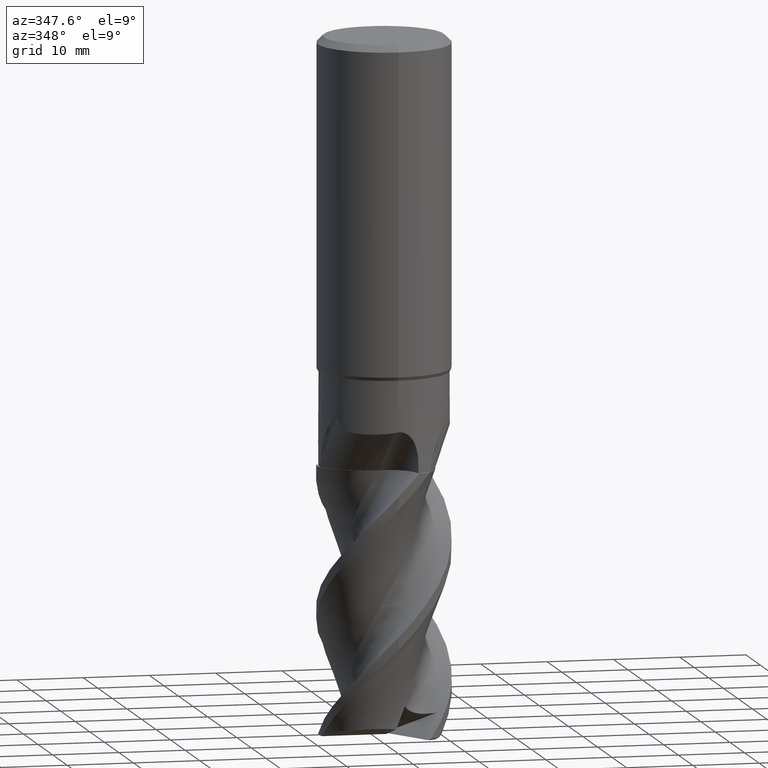
[diagram: clean part render]
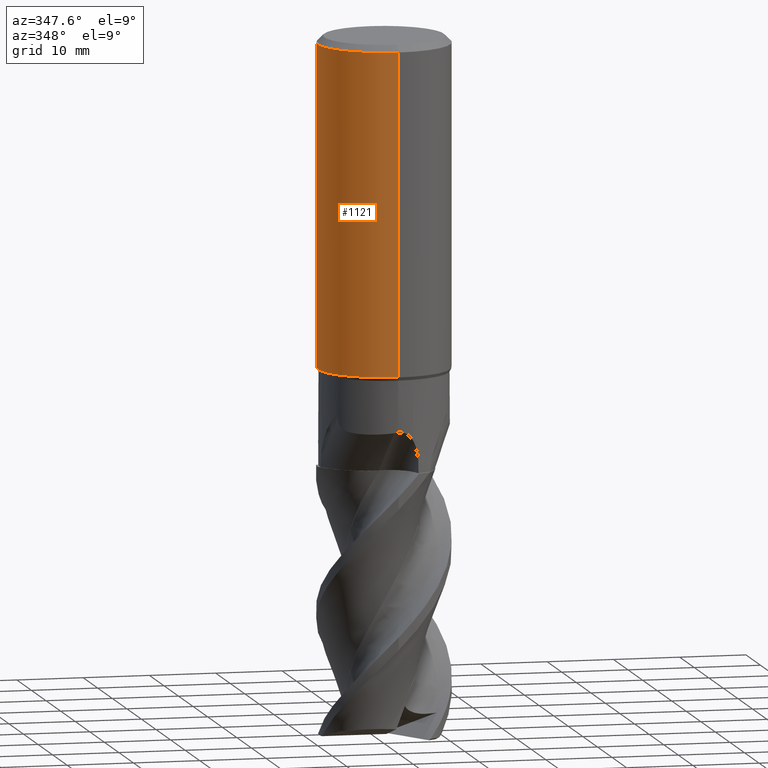
[diagram: same view with one face highlighted and labeled with its STEP entity id]
A machine part, auxiliary view. The second image highlights one B-rep face of the part: STEP entity #1121.
In plain terms, the highlighted cylindrical surface (partial cylindrical patch) has radius 10 mm, axis along (-0, -0, 1).
Its self-contained STEP definition (entity closure, byte-faithful):
#505=VERTEX_POINT('',#1365);
#587=EDGE_CURVE('',#627,#831,#1455,.T.);
#607=VERTEX_POINT('',#1477);
#627=VERTEX_POINT('',#1502);
#659=EDGE_CURVE('',#831,#505,#1537,.T.);
#767=EDGE_CURVE('',#827,#889,#1652,.T.);
#771=EDGE_CURVE('',#1181,#835,#1656,.T.);
#807=EDGE_CURVE('',#505,#627,#1698,.T.);
#827=VERTEX_POINT('',#1723);
#831=VERTEX_POINT('',#1727);
#835=VERTEX_POINT('',#1733);
#889=VERTEX_POINT('',#1791);
#983=EDGE_CURVE('',#1059,#1123,#1890,.T.);
#1011=VERTEX_POINT('',#1918);
#1059=VERTEX_POINT('',#1971);
#1121=ADVANCED_FACE('',(#2040,#2041,#2042),#2043,.T.);
#1123=VERTEX_POINT('',#2045);
#1143=EDGE_CURVE('',#1227,#1181,#2066,.T.);
#1159=EDGE_CURVE('',#1011,#607,#2082,.T.);
#1175=EDGE_CURVE('',#835,#1059,#2099,.T.);
#1181=VERTEX_POINT('',#2105);
#1223=EDGE_CURVE('',#607,#827,#2151,.T.);
#1227=VERTEX_POINT('',#2155);
#1251=EDGE_CURVE('',#1123,#1227,#2181,.T.);
#1273=EDGE_CURVE('',#1011,#889,#2204,.T.);
#1365=CARTESIAN_POINT('',(-0.0316227370732325,9.99995,-33.3020962430548));
#1455=B_SPLINE_CURVE_WITH_KNOTS('',3,(#3294,#3295,#3296,#3297,#3298,#3299,#3300,#3301,#3302,#3303,#3304,#3305,#3306,#3307,#3308,#3309),.UNSPECIFIED.,.F.,.F.,(4,2,2,2,2,2,2,4),(13.0822518574034,13.7710650298006,14.4599721384425,15.1488792470844,15.8377863557263,16.5266934643682,17.2143253597037,17.9019572550391),.UNSPECIFIED.);
#1477=CARTESIAN_POINT('',(1.22460635382238E-015,-10.0,-1.0));
#1502=CARTESIAN_POINT('',(-2.97121348113491,9.54839727124517,-34.7513633984255));
#1537=LINE('',#4011,#4012);
#1652=LINE('',#4627,#4628);
#1656=B_SPLINE_CURVE_WITH_KNOTS('',3,(#4635,#4636,#4637,#4638,#4639,#4640,#4641,#4642,#4643,#4644,#4645,#4646,#4647,#4648,#4649,#4650,#4651,#4652,#4653,#4654,#4655,#4656,#4657,#4658,#4659,#4660,#4661,#4662,#4663,#4664,#4665,#4666,#4667,#4668,#4669,#4670,#4671,#4672,#4673,#4674,#4675,#4676,#4677,#4678,#4679,#4680,#4681),.UNSPECIFIED.,.F.,.F.,(4,2,2,3,2,2,2,2,2,2,2,2,2,2,2,2,2,2,2,2,2,2,4),(-0.904505291133134,-0.603003527422089,-0.301501763711045,0.0,0.301501763711044,0.603003527422088,0.904505291133132,1.20600705484418,1.50828914510139,1.81057123535861,2.11285332561582,2.41513541587304,2.7161033583785,3.01707130088397,3.31803924338943,3.6190071858949,3.92036276204674,4.22171833819858,4.52307391435042,4.82442949050226,5.1257850666541,5.42714064280595,5.72849621895779),.UNSPECIFIED.);
#1698=ELLIPSE('',#5702,11.1492843204286,10.0);
#1723=CARTESIAN_POINT('',(0.0,10.0,-1.0));
#1727=CARTESIAN_POINT('',(-0.0316227370731222,9.99995,-36.2160908087156));
#1733=CARTESIAN_POINT('',(-1.24962484061532,9.92161467492651,-30.1848124731723));
#1791=CARTESIAN_POINT('',(0.0,10.0,-49.48));
#1890=B_SPLINE_CURVE_WITH_KNOTS('',3,(#7703,#7704,#7705,#7706,#7707,#7708,#7709,#7710,#7711,#7712,#7713,#7714,#7715,#7716,#7717,#7718,#7719,#7720,#7721,#7722,#7723,#7724,#7725,#7726),.UNSPECIFIED.,.F.,.F.,(4,2,2,2,2,2,2,2,2,2,2,4),(7.46791014288792,7.96541256832062,8.46291499375333,8.96041741918603,9.45791984461874,9.95542227005144,10.4516566009806,10.9478909319097,11.4441252628388,11.940359593768,12.4400189088528,12.9396782239377),.UNSPECIFIED.);
#1918=CARTESIAN_POINT('',(1.22460635382238E-015,-10.0,-49.48));
#1971=CARTESIAN_POINT('',(-2.30015161783164,9.73187045407955,-30.1848124731723));
#2040=FACE_OUTER_BOUND('',#8729,.T.);
#2041=FACE_BOUND('',#8730,.T.);
#2042=FACE_BOUND('',#8731,.T.);
#2043=CYLINDRICAL_SURFACE('',#8732,10.0);
#2045=CARTESIAN_POINT('',(-0.0316227370732062,9.99995,-32.8094136196901));
#2066=B_SPLINE_CURVE_WITH_KNOTS('',3,(#9093,#9094,#9095,#9096,#9097,#9098,#9099,#9100,#9101,#9102,#9103,#9104,#9105,#9106,#9107,#9108,#9109,#9110,#9111,#9112,#9113,#9114,#9115,#9116,#9117,#9118,#9119,#9120,#9121,#9122,#9123,#9124,#9125,#9126,#9127,#9128,#9129,#9130,#9131,#9132,#9133,#9134,#9135,#9136,#9137,#9138,#9139),.UNSPECIFIED.,.F.,.F.,(4,2,2,3,2,2,2,2,2,2,2,2,2,2,2,2,2,2,2,2,2,2,4),(-0.904505291133134,-0.603003527422089,-0.301501763711045,0.0,0.301501763711044,0.603003527422088,0.904505291133132,1.20600705484418,1.50828914510139,1.81057123535861,2.11285332561582,2.41513541587304,2.7161033583785,3.01707130088397,3.31803924338943,3.6190071858949,3.92036276204674,4.22171833819858,4.52307391435042,4.82442949050226,5.1257850666541,5.42714064280595,5.72849621895779),.UNSPECIFIED.);
#2082=LINE('',#9213,#9214);
#2099=CIRCLE('',#9247,10.0);
#2105=CARTESIAN_POINT('',(-1.08083669387807,9.94141800957825,-30.909612292356));
#2151=CIRCLE('',#9843,10.0);
#2155=CARTESIAN_POINT('',(-0.0316227370735734,9.99995,-31.7466263731563));
#2181=LINE('',#9949,#9950);
#2204=CIRCLE('',#10030,10.0);
#3294=CARTESIAN_POINT('',(-3.064465144062,9.51887878801012,-34.619424718489));
#3295=CARTESIAN_POINT('',(-2.93207371977169,9.56150028927415,-34.8159031682856));
#3296=CARTESIAN_POINT('',(-2.78221330578179,9.60659017651691,-34.9961024951607));
#3297=CARTESIAN_POINT('',(-2.46338958635805,9.6932453227427,-35.3150755115873));
#3298=CARTESIAN_POINT('',(-2.2831818263397,9.73793998544854,-35.4650893942677));
#3299=CARTESIAN_POINT('',(-1.89006279967406,9.82181536300732,-35.7302027828549));
#3300=CARTESIAN_POINT('',(-1.67714982712961,9.86092398085721,-35.8453225636327));
#3301=CARTESIAN_POINT('',(-1.23181074870496,9.92639388610597,-36.0307928721989));
#3302=CARTESIAN_POINT('',(-0.998993982717713,9.95276140285555,-36.1012897100344));
#3303=CARTESIAN_POINT('',(-0.529421014680235,9.98875176931193,-36.1940203935694));
#3304=CARTESIAN_POINT('',(-0.292657869671584,9.99835406091206,-36.2162270569585));
#3305=CARTESIAN_POINT('',(0.166179351363574,10.0012460192168,-36.2162270569585));
#3306=CARTESIAN_POINT('',(0.402624036141334,9.99465558216676,-36.1941010422937));
#3307=CARTESIAN_POINT('',(0.871759467236618,9.96470178941006,-36.1015888545499));
#3308=CARTESIAN_POINT('',(1.10445661059111,9.94135916450407,-36.0312284120675));
#3309=CARTESIAN_POINT('',(1.32707291318415,9.91155272815985,-35.9386212624839));
#4011=CARTESIAN_POINT('',(-0.0316227370732325,9.99995,-32.8481638361144));
#4012=VECTOR('',#10349,1.0);
#4627=CARTESIAN_POINT('',(-1.22460635382238E-015,10.0,-25.24));
#4628=VECTOR('',#10448,1.0);
#4635=CARTESIAN_POINT('',(1.67365635312713,9.8589489506558,-29.3036916416845));
#4636=CARTESIAN_POINT('',(1.73216521933342,9.84901647853448,-29.3907376309277));
#4637=CARTESIAN_POINT('',(1.7828552792778,9.83987519379184,-29.4849160452899));
#4638=CARTESIAN_POINT('',(1.8643343029579,9.8247633269446,-29.6815063371222));
#4639=CARTESIAN_POINT('',(1.89518824545534,9.81879255328383,-29.7840797030206));
#4640=CARTESIAN_POINT('',(1.93568871663788,9.81088858781735,-29.9905034403594));
#4641=CARTESIAN_POINT('',(1.94532578610213,9.80896057622448,-30.0943558659094));
#4642=CARTESIAN_POINT('',(1.94532578610213,9.80896057622448,-30.1948564538131));
#4643=CARTESIAN_POINT('',(1.94532578610213,9.80896057622448,-30.2953570417168));
#4644=CARTESIAN_POINT('',(1.93568871663788,9.81088858781735,-30.3992094672668));
#4645=CARTESIAN_POINT('',(1.89518824545534,9.81879255328383,-30.6056332046056));
#4646=CARTESIAN_POINT('',(1.8643343029579,9.8247633269446,-30.708206570504));
#4647=CARTESIAN_POINT('',(1.7828552792778,9.83987519379184,-30.9047968623364));
#4648=CARTESIAN_POINT('',(1.73216521933342,9.84901647853448,-30.9989752766985));
#4649=CARTESIAN_POINT('',(1.61514748692084,9.86888142277713,-31.173067255185));
#4650=CARTESIAN_POINT('',(1.54881208741372,9.87958907652498,-31.2529774513826));
#4651=CARTESIAN_POINT('',(1.40738081907563,9.90072749156307,-31.3945983130075));
#4652=CARTESIAN_POINT('',(1.32737645363825,9.9119011636308,-31.4611561512742));
#4653=CARTESIAN_POINT('',(1.15308601745526,9.93368539684901,-31.5785425786129));
#4654=CARTESIAN_POINT('',(1.05880343384493,9.9442802848895,-31.629379253119));
#4655=CARTESIAN_POINT('',(0.861979302886534,9.96327088742385,-31.711097709858));
#4656=CARTESIAN_POINT('',(0.759279399619751,9.97167109273908,-31.7420433170591));
#4657=CARTESIAN_POINT('',(0.552558074036873,9.98525959418546,-31.7826732810771));
#4658=CARTESIAN_POINT('',(0.448534408730358,9.99044391417093,-31.7923475548254));
#4659=CARTESIAN_POINT('',(0.247572745624131,9.99743829034348,-31.7923475548254));
#4660=CARTESIAN_POINT('',(0.143876534922301,9.99949682821298,-31.7827557457008));
#4661=CARTESIAN_POINT('',(-0.0623960826390278,10.0003371944957,-31.7423492019081));
#4662=CARTESIAN_POINT('',(-0.164974124788218,9.9991231787575,-31.7115429022769));
#4663=CARTESIAN_POINT('',(-0.361688059604385,9.99394129229172,-31.6300874909763));
#4664=CARTESIAN_POINT('',(-0.455985213521121,9.98998002787405,-31.5793725008394));
#4665=CARTESIAN_POINT('',(-0.630352418812514,9.98049494265621,-31.4622005679278));
#4666=CARTESIAN_POINT('',(-0.710418326253499,9.97498660802636,-31.3957362054942));
#4667=CARTESIAN_POINT('',(-0.852230319266297,9.96387316927875,-31.254045512559));
#4668=CARTESIAN_POINT('',(-0.918818211604656,9.95787383594858,-31.1739482867737));
#4669=CARTESIAN_POINT('',(-1.03620650858128,9.94634376594329,-30.9995056644331));
#4670=CARTESIAN_POINT('',(-1.08701469426457,9.94082924194843,-30.905164432889));
#4671=CARTESIAN_POINT('',(-1.16863624065971,9.93156464655366,-30.7083212183193));
#4672=CARTESIAN_POINT('',(-1.19951446311002,9.9278185725588,-30.6056604482578));
#4673=CARTESIAN_POINT('',(-1.24002911157514,9.92283953107122,-30.3991549399398));
#4674=CARTESIAN_POINT('',(-1.24965641592239,9.92161069797359,-30.2953083125304));
#4675=CARTESIAN_POINT('',(-1.24965641592239,9.92161069797359,-30.0944045950958));
#4676=CARTESIAN_POINT('',(-1.24002911157514,9.92283953107122,-29.9905579676864));
#4677=CARTESIAN_POINT('',(-1.19951446311002,9.9278185725588,-29.7840524593685));
#4678=CARTESIAN_POINT('',(-1.16863624065971,9.93156464655366,-29.681391689307));
#4679=CARTESIAN_POINT('',(-1.08701469426457,9.94082924194843,-29.4845484747373));
#4680=CARTESIAN_POINT('',(-1.03620650858128,9.94634376594329,-29.3902072431931));
#4681=CARTESIAN_POINT('',(-0.977512360092972,9.95210880094593,-29.3029859320228));
#5702=AXIS2_PLACEMENT_3D('',#10533,#10534,#10535);
#7703=CARTESIAN_POINT('',(-2.25082235878216,9.74339769840102,-29.6979143059435));
#7704=CARTESIAN_POINT('',(-2.28428747604402,9.73566692148997,-29.868085013128));
#7705=CARTESIAN_POINT('',(-2.30023075964271,9.73185174837726,-30.0393774783232));
#7706=CARTESIAN_POINT('',(-2.30023075964271,9.73185174837726,-30.371045761945));
#7707=CARTESIAN_POINT('',(-2.28428747604402,9.73566692148997,-30.5423382271401));
#7708=CARTESIAN_POINT('',(-2.2173572415203,9.75112847531207,-30.8826796415091));
#7709=CARTESIAN_POINT('',(-2.16638705772463,9.76276094609619,-31.0517325196036));
#7710=CARTESIAN_POINT('',(-2.03184405267153,9.79164662722868,-31.3756449797371));
#7711=CARTESIAN_POINT('',(-1.94816459135741,9.80888962566933,-31.5307739246349));
#7712=CARTESIAN_POINT('',(-1.75498328939114,9.845287939757,-31.8175167437536));
#7713=CARTESIAN_POINT('',(-1.6454670217229,9.864399219561,-31.9491264862566));
#7714=CARTESIAN_POINT('',(-1.41245757243044,9.9004457650828,-32.1817869276279));
#7715=CARTESIAN_POINT('',(-1.28096853055741,9.91866458537594,-32.2909300875257));
#7716=CARTESIAN_POINT('',(-0.994483240421609,9.95147178149252,-32.4834771683638));
#7717=CARTESIAN_POINT('',(-0.839491019745936,9.96601953281724,-32.5668940012736));
#7718=CARTESIAN_POINT('',(-0.515949704964199,9.98799711651423,-32.7009762826222));
#7719=CARTESIAN_POINT('',(-0.347124906267056,9.99541714560543,-32.7517510345697));
#7720=CARTESIAN_POINT('',(-0.00741593589887704,10.0014401272571,-32.8183881929454));
#7721=CARTESIAN_POINT('',(0.163471348702014,10.0000319031412,-32.8342357388639));
#7722=CARTESIAN_POINT('',(0.495256413593663,9.98911712923564,-32.8342357388639));
#7723=CARTESIAN_POINT('',(0.666997772528588,9.97919681274295,-32.8181726138028));
#7724=CARTESIAN_POINT('',(1.00787833561816,9.95054954847196,-32.7509513896908));
#7725=CARTESIAN_POINT('',(1.17702218704656,9.93183333834353,-32.6998122829361));
#7726=CARTESIAN_POINT('',(1.33893612023062,9.90995711726049,-32.6324280132421));
#8729=EDGE_LOOP('',(#10885,#10886,#10887,#10888));
#8730=EDGE_LOOP('',(#10889,#10890,#10891));
#8731=EDGE_LOOP('',(#10892,#10893,#10894,#10895,#10896));
#8732=AXIS2_PLACEMENT_3D('',#10897,#10898,#10899);
#9093=CARTESIAN_POINT('',(1.67365635312713,9.8589489506558,-29.3036916416845));
#9094=CARTESIAN_POINT('',(1.73216521933342,9.84901647853448,-29.3907376309277));
#9095=CARTESIAN_POINT('',(1.7828552792778,9.83987519379184,-29.4849160452899));
#9096=CARTESIAN_POINT('',(1.8643343029579,9.8247633269446,-29.6815063371222));
#9097=CARTESIAN_POINT('',(1.89518824545534,9.81879255328383,-29.7840797030206));
#9098=CARTESIAN_POINT('',(1.93568871663788,9.81088858781735,-29.9905034403594));
#9099=CARTESIAN_POINT('',(1.94532578610213,9.80896057622448,-30.0943558659094));
#9100=CARTESIAN_POINT('',(1.94532578610213,9.80896057622448,-30.1948564538131));
#9101=CARTESIAN_POINT('',(1.94532578610213,9.80896057622448,-30.2953570417168));
#9102=CARTESIAN_POINT('',(1.93568871663788,9.81088858781735,-30.3992094672668));
#9103=CARTESIAN_POINT('',(1.89518824545534,9.81879255328383,-30.6056332046056));
#9104=CARTESIAN_POINT('',(1.8643343029579,9.8247633269446,-30.708206570504));
#9105=CARTESIAN_POINT('',(1.7828552792778,9.83987519379184,-30.9047968623364));
#9106=CARTESIAN_POINT('',(1.73216521933342,9.84901647853448,-30.9989752766985));
#9107=CARTESIAN_POINT('',(1.61514748692084,9.86888142277713,-31.173067255185));
#9108=CARTESIAN_POINT('',(1.54881208741372,9.87958907652498,-31.2529774513826));
#9109=CARTESIAN_POINT('',(1.40738081907563,9.90072749156307,-31.3945983130075));
#9110=CARTESIAN_POINT('',(1.32737645363825,9.9119011636308,-31.4611561512742));
#9111=CARTESIAN_POINT('',(1.15308601745526,9.93368539684901,-31.5785425786129));
#9112=CARTESIAN_POINT('',(1.05880343384493,9.9442802848895,-31.629379253119));
#9113=CARTESIAN_POINT('',(0.861979302886534,9.96327088742385,-31.711097709858));
#9114=CARTESIAN_POINT('',(0.759279399619751,9.97167109273908,-31.7420433170591));
#9115=CARTESIAN_POINT('',(0.552558074036873,9.98525959418546,-31.7826732810771));
#9116=CARTESIAN_POINT('',(0.448534408730358,9.99044391417093,-31.7923475548254));
#9117=CARTESIAN_POINT('',(0.247572745624131,9.99743829034348,-31.7923475548254));
#9118=CARTESIAN_POINT('',(0.143876534922301,9.99949682821298,-31.7827557457008));
#9119=CARTESIAN_POINT('',(-0.0623960826390278,10.0003371944957,-31.7423492019081));
#9120=CARTESIAN_POINT('',(-0.164974124788218,9.9991231787575,-31.7115429022769));
#9121=CARTESIAN_POINT('',(-0.361688059604385,9.99394129229172,-31.6300874909763));
#9122=CARTESIAN_POINT('',(-0.455985213521121,9.98998002787405,-31.5793725008394));
#9123=CARTESIAN_POINT('',(-0.630352418812514,9.98049494265621,-31.4622005679278));
#9124=CARTESIAN_POINT('',(-0.710418326253499,9.97498660802636,-31.3957362054942));
#9125=CARTESIAN_POINT('',(-0.852230319266297,9.96387316927875,-31.254045512559));
#9126=CARTESIAN_POINT('',(-0.918818211604656,9.95787383594858,-31.1739482867737));
#9127=CARTESIAN_POINT('',(-1.03620650858128,9.94634376594329,-30.9995056644331));
#9128=CARTESIAN_POINT('',(-1.08701469426457,9.94082924194843,-30.905164432889));
#9129=CARTESIAN_POINT('',(-1.16863624065971,9.93156464655366,-30.7083212183193));
#9130=CARTESIAN_POINT('',(-1.19951446311002,9.9278185725588,-30.6056604482578));
#9131=CARTESIAN_POINT('',(-1.24002911157514,9.92283953107122,-30.3991549399398));
#9132=CARTESIAN_POINT('',(-1.24965641592239,9.92161069797359,-30.2953083125304));
#9133=CARTESIAN_POINT('',(-1.24965641592239,9.92161069797359,-30.0944045950958));
#9134=CARTESIAN_POINT('',(-1.24002911157514,9.92283953107122,-29.9905579676864));
#9135=CARTESIAN_POINT('',(-1.19951446311002,9.9278185725588,-29.7840524593685));
#9136=CARTESIAN_POINT('',(-1.16863624065971,9.93156464655366,-29.681391689307));
#9137=CARTESIAN_POINT('',(-1.08701469426457,9.94082924194843,-29.4845484747373));
#9138=CARTESIAN_POINT('',(-1.03620650858128,9.94634376594329,-29.3902072431931));
#9139=CARTESIAN_POINT('',(-0.977512360092972,9.95210880094593,-29.3029859320228));
#9213=CARTESIAN_POINT('',(1.22460635382238E-015,-10.0,-25.24));
#9214=VECTOR('',#10918,1.0);
#9247=AXIS2_PLACEMENT_3D('',#10930,#10931,#10932);
#9843=AXIS2_PLACEMENT_3D('',#10973,#10974,#10975);
#9949=CARTESIAN_POINT('',(-0.0316227370732325,9.99995,-32.8481638361144));
#9950=VECTOR('',#11000,1.0);
#10030=AXIS2_PLACEMENT_3D('',#11009,#11010,#11011);
#10349=DIRECTION('',(-0.0,-0.0,1.0));
#10448=DIRECTION('',(0.0,0.0,-1.0));
#10533=CARTESIAN_POINT('',(0.0,0.0,-33.2865057074349));
#10534=DIRECTION('',(-0.442195774284071,0.0,0.896918556617774));
#10535=DIRECTION('',(0.896918556617774,-0.0,0.442195774284071));
#10885=ORIENTED_EDGE('',*,*,#767,.T.);
#10886=ORIENTED_EDGE('',*,*,#1273,.F.);
#10887=ORIENTED_EDGE('',*,*,#1159,.T.);
#10888=ORIENTED_EDGE('',*,*,#1223,.T.);
#10889=ORIENTED_EDGE('',*,*,#587,.T.);
#10890=ORIENTED_EDGE('',*,*,#659,.T.);
#10891=ORIENTED_EDGE('',*,*,#807,.T.);
#10892=ORIENTED_EDGE('',*,*,#1143,.T.);
#10893=ORIENTED_EDGE('',*,*,#771,.T.);
#10894=ORIENTED_EDGE('',*,*,#1175,.T.);
#10895=ORIENTED_EDGE('',*,*,#983,.T.);
#10896=ORIENTED_EDGE('',*,*,#1251,.T.);
#10897=CARTESIAN_POINT('',(0.0,0.0,-25.24));
#10898=DIRECTION('',(-0.0,-0.0,1.0));
#10899=DIRECTION('',(0.0,1.0,0.0));
#10918=DIRECTION('',(-0.0,-0.0,1.0));
#10930=CARTESIAN_POINT('',(0.0,0.0,-30.1848124731723));
#10931=DIRECTION('',(0.0,-0.0,1.0));
#10932=DIRECTION('',(0.0,1.0,0.0));
#10973=CARTESIAN_POINT('',(0.0,0.0,-1.0));
#10974=DIRECTION('',(0.0,0.0,-1.0));
#10975=DIRECTION('',(0.0,1.0,0.0));
#11000=DIRECTION('',(-0.0,-0.0,1.0));
#11009=CARTESIAN_POINT('',(0.0,0.0,-49.48));
#11010=DIRECTION('',(0.0,0.0,-1.0));
#11011=DIRECTION('',(0.0,1.0,0.0));